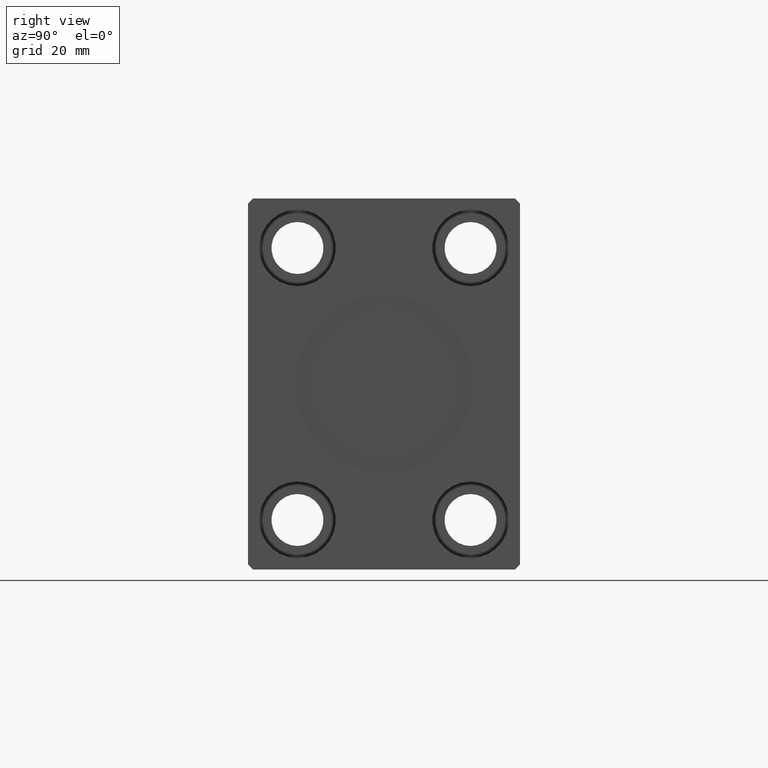
[diagram: clean part render]
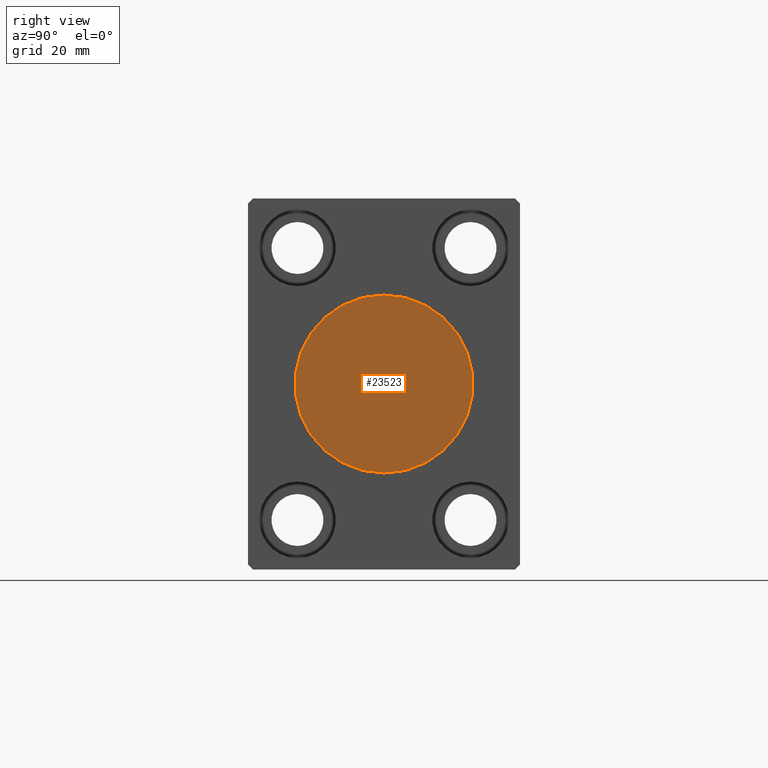
[diagram: same view with one face highlighted and labeled with its STEP entity id]
A machine part, right view. The second image highlights one B-rep face of the part: STEP entity #23523.
In plain terms, the highlighted planar face has unit normal (1, 0, 0).
Its self-contained STEP definition (entity closure, byte-faithful):
#3162 = DIRECTION ( 'NONE',  ( 1.000000000000000000, 0.000000000000000000, 0.000000000000000000 ) ) ;
#4517 = ORIENTED_EDGE ( 'NONE', *, *, #36201, .T. ) ;
#5740 = AXIS2_PLACEMENT_3D ( 'NONE', #38033, #30938, #8710 ) ;
#7575 = PLANE ( 'NONE',  #11110 ) ;
#7821 = AXIS2_PLACEMENT_3D ( 'NONE', #20180, #3162, #13502 ) ;
#8710 = DIRECTION ( 'NONE',  ( 0.000000000000000000, 0.000000000000000000, -1.000000000000000000 ) ) ;
#10593 = DIRECTION ( 'NONE',  ( 1.000000000000000000, 0.000000000000000000, 0.000000000000000000 ) ) ;
#11110 = AXIS2_PLACEMENT_3D ( 'NONE', #14052, #10593, #26757 ) ;
#13502 = DIRECTION ( 'NONE',  ( 0.000000000000000000, 0.000000000000000000, -1.000000000000000000 ) ) ;
#14052 = CARTESIAN_POINT ( 'NONE',  ( 114.7999999999999972, 0.000000000000000000, 0.000000000000000000 ) ) ;
#16379 = VERTEX_POINT ( 'NONE', #24779 ) ;
#20180 = CARTESIAN_POINT ( 'NONE',  ( 114.7999999999999972, 0.000000000000000000, 0.000000000000000000 ) ) ;
#23523 = ADVANCED_FACE ( 'NONE', ( #27207 ), #7575, .T. ) ;
#24779 = CARTESIAN_POINT ( 'NONE',  ( 114.7999999999999972, 2.204364238465235428E-15, 18.00000000000000000 ) ) ;
#26388 = CIRCLE ( 'NONE', #7821, 18.00000000000000000 ) ;
#26588 = CARTESIAN_POINT ( 'NONE',  ( 114.7999999999999972, 0.000000000000000000, -18.00000000000000000 ) ) ;
#26757 = DIRECTION ( 'NONE',  ( 0.000000000000000000, 0.000000000000000000, -1.000000000000000000 ) ) ;
#27207 = FACE_OUTER_BOUND ( 'NONE', #34417, .T. ) ;
#30545 = CIRCLE ( 'NONE', #5740, 18.00000000000000000 ) ;
#30938 = DIRECTION ( 'NONE',  ( 1.000000000000000000, 0.000000000000000000, 0.000000000000000000 ) ) ;
#34417 = EDGE_LOOP ( 'NONE', ( #36642, #4517 ) ) ;
#34545 = EDGE_CURVE ( 'NONE', #37286, #16379, #26388, .T. ) ;
#36201 = EDGE_CURVE ( 'NONE', #16379, #37286, #30545, .T. ) ;
#36642 = ORIENTED_EDGE ( 'NONE', *, *, #34545, .T. ) ;
#37286 = VERTEX_POINT ( 'NONE', #26588 ) ;
#38033 = CARTESIAN_POINT ( 'NONE',  ( 114.7999999999999972, 0.000000000000000000, 0.000000000000000000 ) ) ;